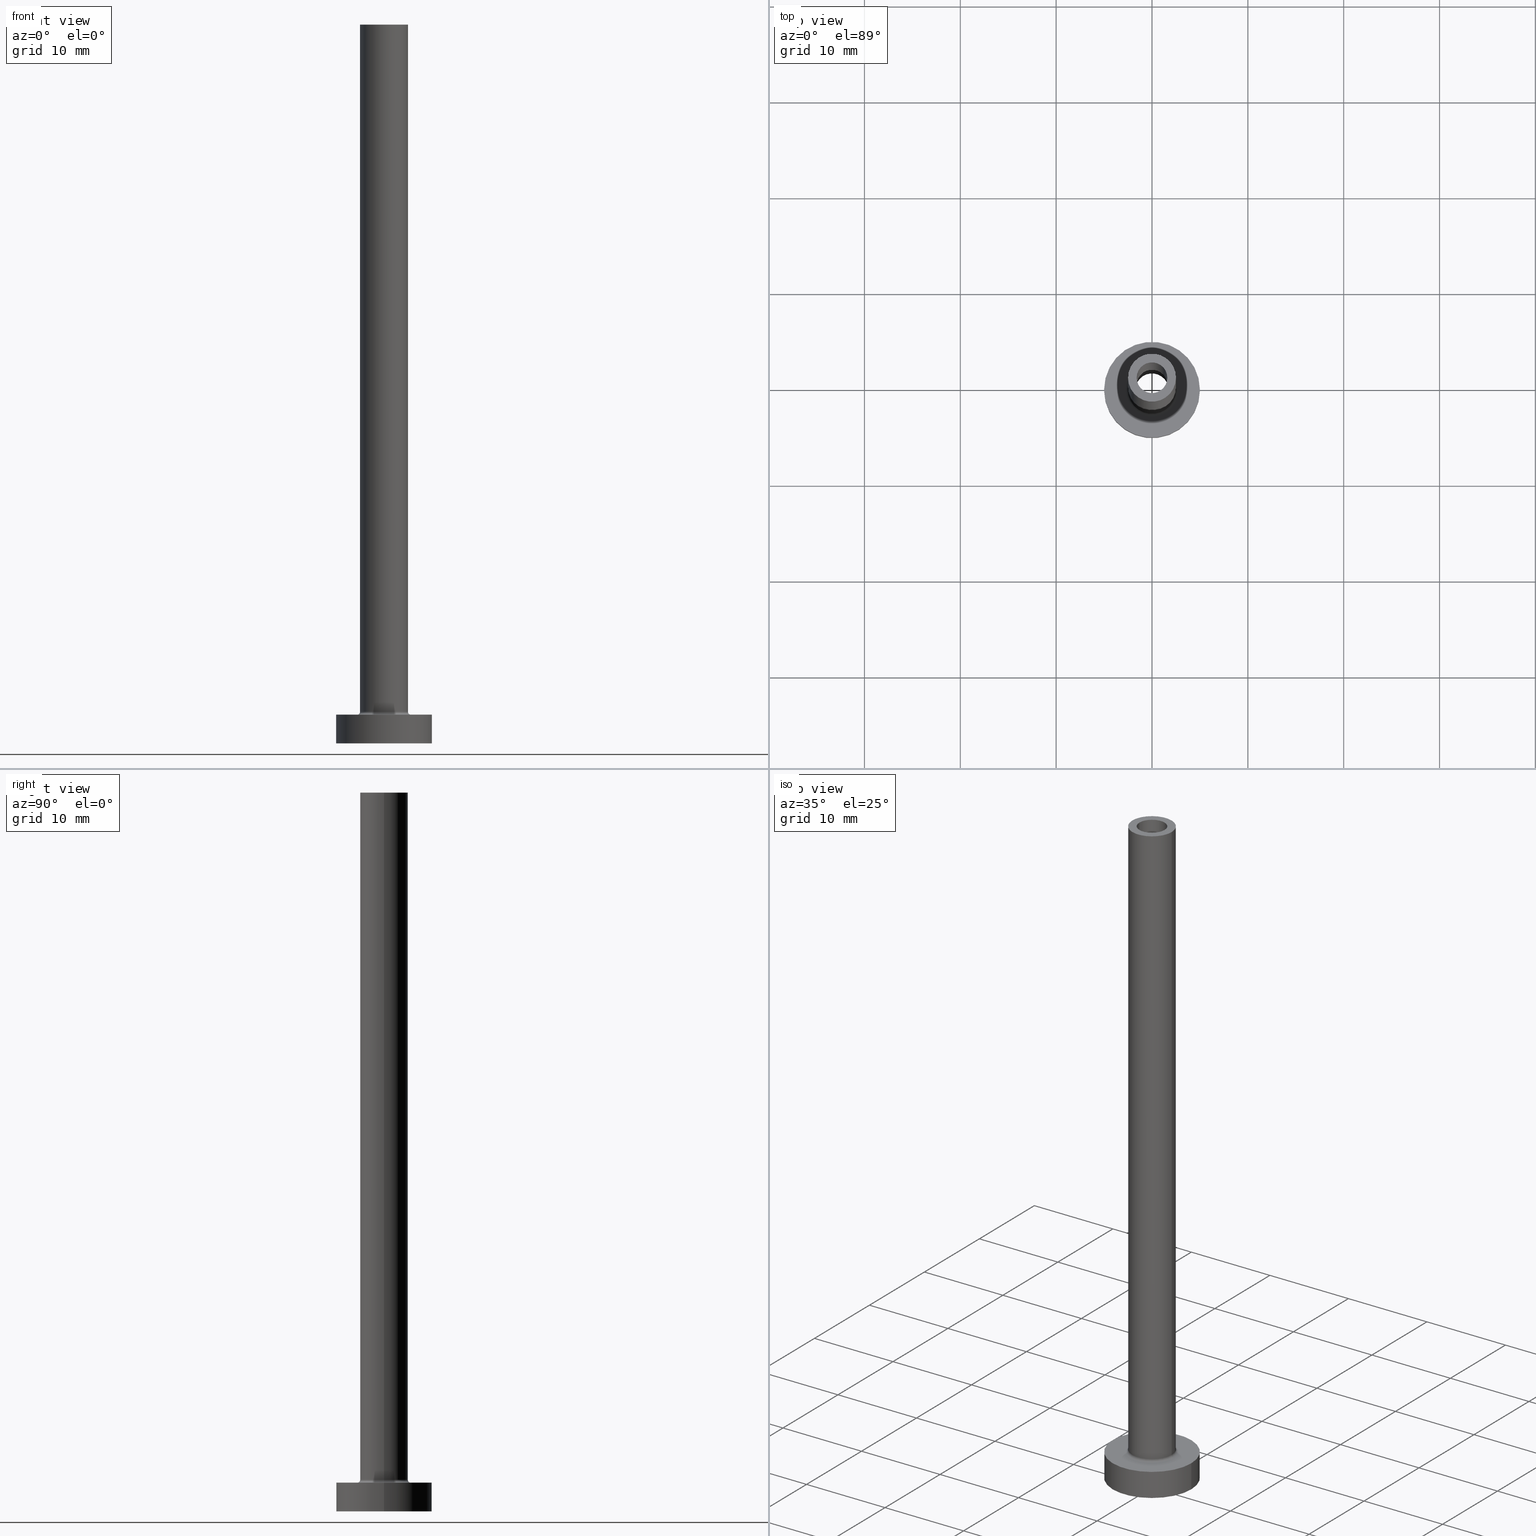
[diagram: canonical four-view strip — front | top / right | iso, engineering-drawing reading convention]
A machine part, canonical four-view strip (front | top / right | iso — engineering-drawing reading convention). The complete STEP part file that produces these views, byte-faithful:
ISO-10303-21;
HEADER;
FILE_DESCRIPTION (( 'STEP AP203' ),
    '1' );
FILE_NAME ('919c.STEP',
    '2023-02-13T12:03:36',
    ( '' ),
    ( '' ),
    'SwSTEP 2.0',
    'SolidWorks 2019',
    '' );
FILE_SCHEMA (( 'CONFIG_CONTROL_DESIGN' ));
ENDSEC;

DATA;
#1 = DIRECTION ( 'NONE',  ( 1.000000000000000000, 0.000000000000000000, 0.000000000000000000 ) ) ;
#2 = CIRCLE ( 'NONE', #239, 1.600000000000000089 ) ;
#3 = EDGE_CURVE ( 'NONE', #45, #334, #375, .T. ) ;
#4 = CC_DESIGN_APPROVAL ( #17, ( #327 ) ) ;
#5 = DIRECTION ( 'NONE',  ( 1.000000000000000000, 0.000000000000000000, 0.000000000000000000 ) ) ;
#6 = DIRECTION ( 'NONE',  ( 1.000000000000000000, 0.000000000000000000, 0.000000000000000000 ) ) ;
#7 = DIRECTION ( 'NONE',  ( 0.000000000000000000, 0.000000000000000000, 1.000000000000000000 ) ) ;
#8 = AXIS2_PLACEMENT_3D ( 'NONE', #140, #283, #71 ) ;
#9 = CC_DESIGN_APPROVAL ( #244, ( #142 ) ) ;
#10 = DIRECTION ( 'NONE',  ( 1.000000000000000000, 0.000000000000000000, 0.000000000000000000 ) ) ;
#11 = ORIENTED_EDGE ( 'NONE', *, *, #39, .F. ) ;
#12 = CARTESIAN_POINT ( 'NONE',  ( 0.000000000000000000, 0.000000000000000000, 3.299999999999997158 ) ) ;
#13 = DATE_TIME_ROLE ( 'creation_date' ) ;
#14 = DIRECTION ( 'NONE',  ( -0.000000000000000000, -0.000000000000000000, -1.000000000000000000 ) ) ;
#15 = PERSON_AND_ORGANIZATION ( #351, #225 ) ;
#16 = CIRCLE ( 'NONE', #399, 0.2999999999999999334 ) ;
#17 = APPROVAL ( #163, 'NEUR�EN�' ) ;
#18 = DIRECTION ( 'NONE',  ( -0.000000000000000000, -0.000000000000000000, -1.000000000000000000 ) ) ;
#19 = ORIENTED_EDGE ( 'NONE', *, *, #193, .F. ) ;
#20 = DIRECTION ( 'NONE',  ( 0.000000000000000000, 0.000000000000000000, 1.000000000000000000 ) ) ;
#21 = MANIFOLD_SOLID_BREP ( 'Odebrat vysunut�m4', #304 ) ;
#22 = CALENDAR_DATE ( 2023, 13, 2 ) ;
#23 = CARTESIAN_POINT ( 'NONE',  ( 0.000000000000000000, 0.000000000000000000, 75.00000000000001421 ) ) ;
#24 = EDGE_LOOP ( 'NONE', ( #147, #52 ) ) ;
#25 = AXIS2_PLACEMENT_3D ( 'NONE', #431, #215, #211 ) ;
#26 = ORIENTED_EDGE ( 'NONE', *, *, #95, .T. ) ;
#27 = PLANE ( 'NONE',  #290 ) ;
#28 = CARTESIAN_POINT ( 'NONE',  ( -2.500000000000000000, 0.000000000000000000, 75.00000000000001421 ) ) ;
#29 = DIRECTION ( 'NONE',  ( 0.000000000000000000, 0.000000000000000000, 1.000000000000000000 ) ) ;
#30 = CIRCLE ( 'NONE', #92, 1.600000000000000089 ) ;
#31 = EDGE_CURVE ( 'NONE', #350, #400, #168, .T. ) ;
#32 = APPROVAL_ROLE ( '' ) ;
#33 = FACE_OUTER_BOUND ( 'NONE', #456, .T. ) ;
#34 = CIRCLE ( 'NONE', #432, 1.600000000000000089 ) ;
#35 = LINE ( 'NONE', #138, #100 ) ;
#36 = EDGE_LOOP ( 'NONE', ( #86, #403, #187, #291 ) ) ;
#37 = DIRECTION ( 'NONE',  ( 0.000000000000000000, 0.000000000000000000, 1.000000000000000000 ) ) ;
#38 = CIRCLE ( 'NONE', #64, 1.750000000000000000 ) ;
#39 = EDGE_CURVE ( 'NONE', #83, #210, #34, .T. ) ;
#40 = CARTESIAN_POINT ( 'NONE',  ( 1.750000000000000000, 2.143131898507868297E-16, 0.000000000000000000 ) ) ;
#41 = ORIENTED_EDGE ( 'NONE', *, *, #272, .F. ) ;
#42 = CARTESIAN_POINT ( 'NONE',  ( 1.600000000000000089, 1.959434878635764737E-16, 75.00000000000001421 ) ) ;
#43 = EDGE_CURVE ( 'NONE', #350, #171, #104, .T. ) ;
#44 = DIRECTION ( 'NONE',  ( -0.000000000000000000, -0.000000000000000000, -1.000000000000000000 ) ) ;
#45 = VERTEX_POINT ( 'NONE', #398 ) ;
#46 = DIRECTION ( 'NONE',  ( 0.000000000000000000, 0.000000000000000000, -1.000000000000000000 ) ) ;
#47 = PERSON_AND_ORGANIZATION ( #351, #225 ) ;
#48 = APPROVAL ( #447, 'NEUR�EN�' ) ;
#49 = EDGE_CURVE ( 'NONE', #102, #153, #159, .T. ) ;
#50 = EDGE_CURVE ( 'NONE', #102, #323, #258, .T. ) ;
#51 = CARTESIAN_POINT ( 'NONE',  ( 0.000000000000000000, 0.000000000000000000, 75.00000000000001421 ) ) ;
#52 = ORIENTED_EDGE ( 'NONE', *, *, #407, .T. ) ;
#53 = CIRCLE ( 'NONE', #434, 2.799999999999999822 ) ;
#54 = EDGE_CURVE ( 'NONE', #323, #330, #282, .T. ) ;
#55 = CARTESIAN_POINT ( 'NONE',  ( 0.000000000000000000, 0.000000000000000000, 75.00000000000001421 ) ) ;
#56 = ORIENTED_EDGE ( 'NONE', *, *, #191, .F. ) ;
#57 = PERSON_AND_ORGANIZATION_ROLE ( 'design_supplier' ) ;
#58 = CIRCLE ( 'NONE', #174, 5.000000000000000000 ) ;
#59 = DIRECTION ( 'NONE',  ( 1.000000000000000000, 0.000000000000000000, 0.000000000000000000 ) ) ;
#60 = ORIENTED_EDGE ( 'NONE', *, *, #31, .T. ) ;
#61 = CYLINDRICAL_SURFACE ( 'NONE', #246, 1.750000000000000000 ) ;
#62 = FACE_OUTER_BOUND ( 'NONE', #377, .T. ) ;
#63 = VERTEX_POINT ( 'NONE', #333 ) ;
#64 = AXIS2_PLACEMENT_3D ( 'NONE', #390, #109, #214 ) ;
#65 = DIRECTION ( 'NONE',  ( -0.000000000000000000, -0.000000000000000000, -1.000000000000000000 ) ) ;
#66 = EDGE_CURVE ( 'NONE', #45, #135, #437, .T. ) ;
#67 = ORIENTED_EDGE ( 'NONE', *, *, #54, .T. ) ;
#68 = CYLINDRICAL_SURFACE ( 'NONE', #439, 2.500000000000000000 ) ;
#69 = ORIENTED_EDGE ( 'NONE', *, *, #293, .F. ) ;
#70 = ADVANCED_FACE ( 'NONE', ( #185 ), #395, .F. ) ;
#71 = DIRECTION ( 'NONE',  ( 1.000000000000000000, 0.000000000000000000, 0.000000000000000000 ) ) ;
#72 = DIRECTION ( 'NONE',  ( -1.000000000000000000, 0.000000000000000000, 0.000000000000000000 ) ) ;
#73 = LOCAL_TIME ( 13, 3, 36.00000000000000000, #229 ) ;
#74 = CARTESIAN_POINT ( 'NONE',  ( -2.500000000000000000, 0.000000000000000000, 3.299999999999997158 ) ) ;
#75 = CC_DESIGN_PERSON_AND_ORGANIZATION_ASSIGNMENT ( #236, #368, ( #186 ) ) ;
#76 = CARTESIAN_POINT ( 'NONE',  ( 0.000000000000000000, 0.000000000000000000, 75.00000000000001421 ) ) ;
#77 = DIRECTION ( 'NONE',  ( 0.000000000000000000, 0.000000000000000000, -1.000000000000000000 ) ) ;
#78 = APPROVAL_PERSON_ORGANIZATION ( #47, #17, #341 ) ;
#79 = APPROVAL_DATE_TIME ( #145, #17 ) ;
#80 = DIRECTION ( 'NONE',  ( 0.000000000000000000, 0.000000000000000000, 1.000000000000000000 ) ) ;
#81 = ORIENTED_EDGE ( 'NONE', *, *, #193, .T. ) ;
#82 = EDGE_LOOP ( 'NONE', ( #202, #81 ) ) ;
#83 = VERTEX_POINT ( 'NONE', #42 ) ;
#84 = AXIS2_PLACEMENT_3D ( 'NONE', #386, #37, #1 ) ;
#85 = CARTESIAN_POINT ( 'NONE',  ( 0.000000000000000000, 0.000000000000000000, 3.299999999999997158 ) ) ;
#86 = ORIENTED_EDGE ( 'NONE', *, *, #49, .T. ) ;
#87 = EDGE_CURVE ( 'NONE', #63, #135, #58, .T. ) ;
#88 = ADVANCED_FACE ( 'NONE', ( #440 ), #361, .T. ) ;
#89 = CARTESIAN_POINT ( 'NONE',  ( 2.500000000000000000, 3.061616997868383141E-16, 75.00000000000001421 ) ) ;
#90 = PERSON_AND_ORGANIZATION_ROLE ( 'classification_officer' ) ;
#91 = CARTESIAN_POINT ( 'NONE',  ( 0.000000000000000000, 0.000000000000000000, 3.000000000000000000 ) ) ;
#92 = AXIS2_PLACEMENT_3D ( 'NONE', #132, #450, #124 ) ;
#93 = CARTESIAN_POINT ( 'NONE',  ( -5.000000000000000000, 0.000000000000000000, 0.000000000000000000 ) ) ;
#94 = ORIENTED_EDGE ( 'NONE', *, *, #342, .F. ) ;
#95 = EDGE_CURVE ( 'NONE', #337, #171, #298, .T. ) ;
#96 = CC_DESIGN_PERSON_AND_ORGANIZATION_ASSIGNMENT ( #408, #374, ( #142 ) ) ;
#97 = DIRECTION ( 'NONE',  ( -1.000000000000000000, 0.000000000000000000, 0.000000000000000000 ) ) ;
#98 = ORIENTED_EDGE ( 'NONE', *, *, #170, .F. ) ;
#99 = DIRECTION ( 'NONE',  ( 0.000000000000000000, -1.000000000000000000, 0.000000000000000000 ) ) ;
#100 = VECTOR ( 'NONE', #176, 1000.000000000000000 ) ;
#101 = CARTESIAN_POINT ( 'NONE',  ( 0.000000000000000000, 0.000000000000000000, 3.000000000000000000 ) ) ;
#102 = VERTEX_POINT ( 'NONE', #369 ) ;
#103 = CALENDAR_DATE ( 2023, 13, 2 ) ;
#104 = CIRCLE ( 'NONE', #359, 2.500000000000000000 ) ;
#105 = CARTESIAN_POINT ( 'NONE',  ( -2.799999999999999822, 3.429011037612589276E-16, 2.999999999999998668 ) ) ;
#106 = CARTESIAN_POINT ( 'NONE',  ( 1.750000000000000000, 2.143131898507868297E-16, 34.94974746830584422 ) ) ;
#107 = CYLINDRICAL_SURFACE ( 'NONE', #328, 1.750000000000000000 ) ;
#108 =( GEOMETRIC_REPRESENTATION_CONTEXT ( 3 ) GLOBAL_UNCERTAINTY_ASSIGNED_CONTEXT ( ( #184 ) ) GLOBAL_UNIT_ASSIGNED_CONTEXT ( ( #155, #158, #233 ) ) REPRESENTATION_CONTEXT ( 'NONE', 'WORKASPACE' ) );
#109 = DIRECTION ( 'NONE',  ( -0.000000000000000000, -0.000000000000000000, -1.000000000000000000 ) ) ;
#110 = FACE_OUTER_BOUND ( 'NONE', #36, .T. ) ;
#111 = ADVANCED_FACE ( 'NONE', ( #360, #305 ), #27, .T. ) ;
#112 = AXIS2_PLACEMENT_3D ( 'NONE', #242, #245, #72 ) ;
#113 = DIRECTION ( 'NONE',  ( 0.000000000000000000, 0.000000000000000000, 1.000000000000000000 ) ) ;
#114 = DESIGN_CONTEXT ( 'detailed design', #149, 'design' ) ;
#115 = DIRECTION ( 'NONE',  ( 1.000000000000000000, 0.000000000000000000, 0.000000000000000000 ) ) ;
#116 = COORDINATED_UNIVERSAL_TIME_OFFSET ( 1, 0, .AHEAD. ) ;
#117 = APPROVAL_PERSON_ORGANIZATION ( #371, #48, #32 ) ;
#118 = DIRECTION ( 'NONE',  ( 0.000000000000000000, 0.000000000000000000, 1.000000000000000000 ) ) ;
#119 = AXIS2_PLACEMENT_3D ( 'NONE', #443, #224, #402 ) ;
#120 = PERSON_AND_ORGANIZATION ( #351, #225 ) ;
#121 = DIRECTION ( 'NONE',  ( -0.000000000000000000, -0.000000000000000000, -1.000000000000000000 ) ) ;
#122 = ORIENTED_EDGE ( 'NONE', *, *, #338, .T. ) ;
#123 = CALENDAR_DATE ( 2023, 13, 2 ) ;
#124 = DIRECTION ( 'NONE',  ( 1.000000000000000000, 0.000000000000000000, 0.000000000000000000 ) ) ;
#125 = ORIENTED_EDGE ( 'NONE', *, *, #151, .T. ) ;
#126 = CIRCLE ( 'NONE', #84, 2.500000000000000000 ) ;
#127 = DIRECTION ( 'NONE',  ( 0.000000000000000000, 0.000000000000000000, 1.000000000000000000 ) ) ;
#128 = ADVANCED_FACE ( 'NONE', ( #313 ), #141, .F. ) ;
#129 = ADVANCED_FACE ( 'NONE', ( #384, #413 ), #234, .T. ) ;
#130 = DIRECTION ( 'NONE',  ( 1.000000000000000000, 0.000000000000000000, 0.000000000000000000 ) ) ;
#131 = EDGE_LOOP ( 'NONE', ( #411, #418, #150, #263 ) ) ;
#132 = CARTESIAN_POINT ( 'NONE',  ( 0.000000000000000000, 0.000000000000000000, 30.00000000000001421 ) ) ;
#133 = AXIS2_PLACEMENT_3D ( 'NONE', #349, #209, #314 ) ;
#134 = CARTESIAN_POINT ( 'NONE',  ( 5.000000000000000000, 6.123233995736766282E-16, 3.000000000000000000 ) ) ;
#135 = VERTEX_POINT ( 'NONE', #93 ) ;
#136 = ADVANCED_FACE ( 'NONE', ( #62 ), #68, .T. ) ;
#137 = VECTOR ( 'NONE', #18, 1000.000000000000000 ) ;
#138 = CARTESIAN_POINT ( 'NONE',  ( -1.600000000000000089, 0.000000000000000000, 75.00000000000001421 ) ) ;
#139 = CYLINDRICAL_SURFACE ( 'NONE', #112, 1.600000000000000089 ) ;
#140 = CARTESIAN_POINT ( 'NONE',  ( 0.000000000000000000, 0.000000000000000000, 75.00000000000001421 ) ) ;
#141 = TOROIDAL_SURFACE ( 'NONE', #178, 2.799999999999999822, 0.2999999999999999889 ) ;
#142 = PRODUCT_DEFINITION_FORMATION_WITH_SPECIFIED_SOURCE ( 'LIBOVOLN�', '', #186, .NOT_KNOWN. ) ;
#143 = EDGE_LOOP ( 'NONE', ( #364, #406, #243, #266 ) ) ;
#144 = FACE_OUTER_BOUND ( 'NONE', #451, .T. ) ;
#145 = DATE_AND_TIME ( #378, #218 ) ;
#146 = ADVANCED_FACE ( 'NONE', ( #275 ), #376, .T. ) ;
#147 = ORIENTED_EDGE ( 'NONE', *, *, #195, .T. ) ;
#148 = PRODUCT_DEFINITION_SHAPE ( 'NONE', 'NONE',  #327 ) ;
#149 = APPLICATION_CONTEXT ( 'configuration controlled 3d designs of mechanical parts and assemblies' ) ;
#150 = ORIENTED_EDGE ( 'NONE', *, *, #87, .T. ) ;
#151 = EDGE_CURVE ( 'NONE', #380, #438, #30, .T. ) ;
#152 = CC_DESIGN_PERSON_AND_ORGANIZATION_ASSIGNMENT ( #120, #190, ( #327 ) ) ;
#153 = VERTEX_POINT ( 'NONE', #277 ) ;
#154 = ORIENTED_EDGE ( 'NONE', *, *, #151, .F. ) ;
#155 =( LENGTH_UNIT ( ) NAMED_UNIT ( * ) SI_UNIT ( .MILLI., .METRE. ) );
#156 = DIRECTION ( 'NONE',  ( -1.000000000000000000, 0.000000000000000000, 0.000000000000000000 ) ) ;
#157 = CIRCLE ( 'NONE', #353, 2.799999999999999822 ) ;
#158 =( NAMED_UNIT ( * ) PLANE_ANGLE_UNIT ( ) SI_UNIT ( $, .RADIAN. ) );
#159 = CIRCLE ( 'NONE', #423, 1.750000000000000000 ) ;
#160 = ORIENTED_EDGE ( 'NONE', *, *, #43, .F. ) ;
#161 = DIRECTION ( 'NONE',  ( -1.000000000000000000, 0.000000000000000000, 0.000000000000000000 ) ) ;
#162 = DIRECTION ( 'NONE',  ( 1.000000000000000000, 0.000000000000000000, -0.000000000000000000 ) ) ;
#163 = APPROVAL_STATUS ( 'not_yet_approved' ) ;
#164 = DIRECTION ( 'NONE',  ( 0.000000000000000000, 0.000000000000000000, 1.000000000000000000 ) ) ;
#165 = AXIS2_PLACEMENT_3D ( 'NONE', #270, #227, #6 ) ;
#166 = CARTESIAN_POINT ( 'NONE',  ( 0.000000000000000000, 0.000000000000000000, 3.000000000000000000 ) ) ;
#167 = DATE_AND_TIME ( #103, #430 ) ;
#168 = CIRCLE ( 'NONE', #119, 0.2999999999999999334 ) ;
#169 = DIRECTION ( 'NONE',  ( -1.000000000000000000, 0.000000000000000000, 0.000000000000000000 ) ) ;
#170 = EDGE_CURVE ( 'NONE', #135, #63, #194, .T. ) ;
#171 = VERTEX_POINT ( 'NONE', #452 ) ;
#172 = CIRCLE ( 'NONE', #392, 2.500000000000000000 ) ;
#173 = LINE ( 'NONE', #355, #251 ) ;
#174 = AXIS2_PLACEMENT_3D ( 'NONE', #295, #221, #115 ) ;
#175 = DIRECTION ( 'NONE',  ( -0.000000000000000000, -0.000000000000000000, -1.000000000000000000 ) ) ;
#176 = DIRECTION ( 'NONE',  ( 0.000000000000000000, 0.000000000000000000, -1.000000000000000000 ) ) ;
#177 = CARTESIAN_POINT ( 'NONE',  ( 0.000000000000000000, 0.000000000000000000, 3.000000000000000000 ) ) ;
#178 = AXIS2_PLACEMENT_3D ( 'NONE', #265, #372, #449 ) ;
#179 = DIRECTION ( 'NONE',  ( 0.000000000000000000, 0.000000000000000000, 1.000000000000000000 ) ) ;
#180 = VERTEX_POINT ( 'NONE', #28 ) ;
#181 = ORIENTED_EDGE ( 'NONE', *, *, #191, .T. ) ;
#182 = ORIENTED_EDGE ( 'NONE', *, *, #223, .F. ) ;
#183 = AXIS2_PLACEMENT_3D ( 'NONE', #352, #29, #356 ) ;
#184 = UNCERTAINTY_MEASURE_WITH_UNIT (LENGTH_MEASURE( 1.000000000000000082E-05 ), #155, 'distance_accuracy_value', 'NONE');
#185 = FACE_OUTER_BOUND ( 'NONE', #362, .T. ) ;
#186 = PRODUCT ( '919c', '919c', '', ( #264 ) ) ;
#187 = ORIENTED_EDGE ( 'NONE', *, *, #272, .T. ) ;
#188 = APPLICATION_CONTEXT ( 'configuration controlled 3d designs of mechanical parts and assemblies' ) ;
#189 = CARTESIAN_POINT ( 'NONE',  ( 0.000000000000000000, 0.000000000000000000, 3.000000000000000000 ) ) ;
#190 = PERSON_AND_ORGANIZATION_ROLE ( 'creator' ) ;
#191 = EDGE_CURVE ( 'NONE', #171, #367, #16, .T. ) ;
#192 = DIRECTION ( 'NONE',  ( 0.000000000000000000, 0.000000000000000000, 1.000000000000000000 ) ) ;
#193 = EDGE_CURVE ( 'NONE', #400, #367, #157, .T. ) ;
#194 = CIRCLE ( 'NONE', #133, 5.000000000000000000 ) ;
#195 = EDGE_CURVE ( 'NONE', #180, #337, #172, .T. ) ;
#196 = SECURITY_CLASSIFICATION_LEVEL ( 'unclassified' ) ;
#197 = DIRECTION ( 'NONE',  ( 0.000000000000000000, 0.000000000000000000, 1.000000000000000000 ) ) ;
#198 = PERSON_AND_ORGANIZATION ( #351, #225 ) ;
#199 = CARTESIAN_POINT ( 'NONE',  ( 0.000000000000000000, 0.000000000000000000, 75.00000000000001421 ) ) ;
#200 = EDGE_LOOP ( 'NONE', ( #98, #370 ) ) ;
#201 = FACE_OUTER_BOUND ( 'NONE', #131, .T. ) ;
#202 = ORIENTED_EDGE ( 'NONE', *, *, #342, .T. ) ;
#203 = CC_DESIGN_PERSON_AND_ORGANIZATION_ASSIGNMENT ( #198, #90, ( #300 ) ) ;
#204 = COORDINATED_UNIVERSAL_TIME_OFFSET ( 1, 0, .AHEAD. ) ;
#205 = LOCAL_TIME ( 13, 3, 36.00000000000000000, #289 ) ;
#206 = DIRECTION ( 'NONE',  ( 1.000000000000000000, 0.000000000000000000, -0.000000000000000000 ) ) ;
#207 = ORIENTED_EDGE ( 'NONE', *, *, #66, .T. ) ;
#208 = SHAPE_DEFINITION_REPRESENTATION ( #148, #315 ) ;
#209 = DIRECTION ( 'NONE',  ( 0.000000000000000000, 0.000000000000000000, 1.000000000000000000 ) ) ;
#210 = VERTEX_POINT ( 'NONE', #273 ) ;
#211 = DIRECTION ( 'NONE',  ( -1.000000000000000000, 0.000000000000000000, 0.000000000000000000 ) ) ;
#212 = ADVANCED_FACE ( 'NONE', ( #267, #410 ), #231, .F. ) ;
#213 = LINE ( 'NONE', #391, #299 ) ;
#214 = DIRECTION ( 'NONE',  ( 1.000000000000000000, 0.000000000000000000, 0.000000000000000000 ) ) ;
#215 = DIRECTION ( 'NONE',  ( 0.000000000000000000, 0.000000000000000000, -1.000000000000000000 ) ) ;
#216 = CARTESIAN_POINT ( 'NONE',  ( 2.799999999999999822, 0.000000000000000000, 2.999999999999998668 ) ) ;
#217 = AXIS2_PLACEMENT_3D ( 'NONE', #177, #324, #5 ) ;
#218 = LOCAL_TIME ( 13, 3, 36.00000000000000000, #307 ) ;
#219 = VECTOR ( 'NONE', #46, 1000.000000000000000 ) ;
#220 = APPROVAL_STATUS ( 'not_yet_approved' ) ;
#221 = DIRECTION ( 'NONE',  ( 0.000000000000000000, 0.000000000000000000, 1.000000000000000000 ) ) ;
#222 = ORIENTED_EDGE ( 'NONE', *, *, #49, .F. ) ;
#223 = EDGE_CURVE ( 'NONE', #153, #102, #388, .T. ) ;
#224 = DIRECTION ( 'NONE',  ( 1.224646799147353207E-16, 1.000000000000000000, -0.000000000000000000 ) ) ;
#225 = ORGANIZATION ( 'NEUR�EN�', 'NEUR�EN�', '' ) ;
#226 = DIRECTION ( 'NONE',  ( 1.000000000000000000, 0.000000000000000000, 0.000000000000000000 ) ) ;
#227 = DIRECTION ( 'NONE',  ( 0.000000000000000000, 0.000000000000000000, 1.000000000000000000 ) ) ;
#228 = DIRECTION ( 'NONE',  ( -0.000000000000000000, -0.000000000000000000, -1.000000000000000000 ) ) ;
#229 = COORDINATED_UNIVERSAL_TIME_OFFSET ( 1, 0, .AHEAD. ) ;
#230 = EDGE_CURVE ( 'NONE', #438, #380, #2, .T. ) ;
#231 = PLANE ( 'NONE',  #448 ) ;
#232 = EDGE_LOOP ( 'NONE', ( #414, #317 ) ) ;
#233 =( NAMED_UNIT ( * ) SI_UNIT ( $, .STERADIAN. ) SOLID_ANGLE_UNIT ( ) );
#234 = PLANE ( 'NONE',  #455 ) ;
#235 = ORIENTED_EDGE ( 'NONE', *, *, #256, .T. ) ;
#236 = PERSON_AND_ORGANIZATION ( #351, #225 ) ;
#237 = DIRECTION ( 'NONE',  ( 0.000000000000000000, 0.000000000000000000, 1.000000000000000000 ) ) ;
#238 = DIRECTION ( 'NONE',  ( -0.000000000000000000, -0.000000000000000000, -1.000000000000000000 ) ) ;
#239 = AXIS2_PLACEMENT_3D ( 'NONE', #311, #237, #379 ) ;
#240 = DIRECTION ( 'NONE',  ( 1.000000000000000000, 0.000000000000000000, 0.000000000000000000 ) ) ;
#241 = EDGE_LOOP ( 'NONE', ( #235, #122, #154, #385 ) ) ;
#242 = CARTESIAN_POINT ( 'NONE',  ( 0.000000000000000000, 0.000000000000000000, 75.00000000000001421 ) ) ;
#243 = ORIENTED_EDGE ( 'NONE', *, *, #288, .T. ) ;
#244 = APPROVAL ( #220, 'NEUR�EN�' ) ;
#245 = DIRECTION ( 'NONE',  ( 0.000000000000000000, 0.000000000000000000, -1.000000000000000000 ) ) ;
#246 = AXIS2_PLACEMENT_3D ( 'NONE', #412, #261, #161 ) ;
#247 = DIRECTION ( 'NONE',  ( 0.000000000000000000, 0.000000000000000000, -1.000000000000000000 ) ) ;
#248 = ADVANCED_FACE ( 'NONE', ( #201 ), #344, .T. ) ;
#249 = FACE_BOUND ( 'NONE', #348, .T. ) ;
#250 = CARTESIAN_POINT ( 'NONE',  ( 0.000000000000000000, 0.000000000000000000, 34.94974746830584422 ) ) ;
#251 = VECTOR ( 'NONE', #77, 1000.000000000000000 ) ;
#252 = DATE_AND_TIME ( #445, #205 ) ;
#253 = AXIS2_PLACEMENT_3D ( 'NONE', #343, #164, #130 ) ;
#254 = CC_DESIGN_SECURITY_CLASSIFICATION ( #300, ( #142 ) ) ;
#255 = DIRECTION ( 'NONE',  ( 1.000000000000000000, 0.000000000000000000, 0.000000000000000000 ) ) ;
#256 = EDGE_CURVE ( 'NONE', #210, #83, #429, .T. ) ;
#257 = CARTESIAN_POINT ( 'NONE',  ( -1.750000000000000000, 0.000000000000000000, 34.94974746830584422 ) ) ;
#258 = LINE ( 'NONE', #257, #219 ) ;
#259 = ORIENTED_EDGE ( 'NONE', *, *, #3, .F. ) ;
#260 = AXIS2_PLACEMENT_3D ( 'NONE', #166, #238, #416 ) ;
#261 = DIRECTION ( 'NONE',  ( 0.000000000000000000, 0.000000000000000000, -1.000000000000000000 ) ) ;
#262 = EDGE_LOOP ( 'NONE', ( #276, #11 ) ) ;
#263 = ORIENTED_EDGE ( 'NONE', *, *, #66, .F. ) ;
#264 = MECHANICAL_CONTEXT ( 'NONE', #188, 'mechanical' ) ;
#265 = CARTESIAN_POINT ( 'NONE',  ( 0.000000000000000000, 0.000000000000000000, 3.299999999999997158 ) ) ;
#266 = ORIENTED_EDGE ( 'NONE', *, *, #43, .T. ) ;
#267 = FACE_BOUND ( 'NONE', #444, .T. ) ;
#268 = CIRCLE ( 'NONE', #8, 2.500000000000000000 ) ;
#269 = ORIENTED_EDGE ( 'NONE', *, *, #381, .T. ) ;
#270 = CARTESIAN_POINT ( 'NONE',  ( 0.000000000000000000, 0.000000000000000000, 0.000000000000000000 ) ) ;
#271 = CC_DESIGN_DATE_AND_TIME_ASSIGNMENT ( #252, #13, ( #327 ) ) ;
#272 = EDGE_CURVE ( 'NONE', #330, #323, #38, .T. ) ;
#273 = CARTESIAN_POINT ( 'NONE',  ( -1.600000000000000089, 0.000000000000000000, 75.00000000000001421 ) ) ;
#274 = ORIENTED_EDGE ( 'NONE', *, *, #39, .T. ) ;
#275 = FACE_OUTER_BOUND ( 'NONE', #143, .T. ) ;
#276 = ORIENTED_EDGE ( 'NONE', *, *, #256, .F. ) ;
#277 = CARTESIAN_POINT ( 'NONE',  ( 1.750000000000000000, 2.143131898507868297E-16, 30.00000000000001421 ) ) ;
#278 = ORIENTED_EDGE ( 'NONE', *, *, #230, .F. ) ;
#279 = AXIS2_PLACEMENT_3D ( 'NONE', #76, #179, #284 ) ;
#280 = DIRECTION ( 'NONE',  ( -0.000000000000000000, -0.000000000000000000, -1.000000000000000000 ) ) ;
#281 = ORIENTED_EDGE ( 'NONE', *, *, #381, .F. ) ;
#282 = CIRCLE ( 'NONE', #339, 1.750000000000000000 ) ;
#283 = DIRECTION ( 'NONE',  ( 0.000000000000000000, 0.000000000000000000, 1.000000000000000000 ) ) ;
#284 = DIRECTION ( 'NONE',  ( 1.000000000000000000, 0.000000000000000000, 0.000000000000000000 ) ) ;
#285 = AXIS2_PLACEMENT_3D ( 'NONE', #189, #14, #156 ) ;
#286 = FACE_OUTER_BOUND ( 'NONE', #401, .T. ) ;
#287 = PLANE ( 'NONE',  #183 ) ;
#288 = EDGE_CURVE ( 'NONE', #180, #350, #213, .T. ) ;
#289 = COORDINATED_UNIVERSAL_TIME_OFFSET ( 1, 0, .AHEAD. ) ;
#290 = AXIS2_PLACEMENT_3D ( 'NONE', #55, #405, #308 ) ;
#291 = ORIENTED_EDGE ( 'NONE', *, *, #50, .F. ) ;
#292 = ORIENTED_EDGE ( 'NONE', *, *, #230, .T. ) ;
#293 = EDGE_CURVE ( 'NONE', #334, #63, #461, .T. ) ;
#294 = ORIENTED_EDGE ( 'NONE', *, *, #50, .T. ) ;
#295 = CARTESIAN_POINT ( 'NONE',  ( 0.000000000000000000, 0.000000000000000000, 0.000000000000000000 ) ) ;
#296 = ORIENTED_EDGE ( 'NONE', *, *, #365, .T. ) ;
#297 = DATE_AND_TIME ( #22, #73 ) ;
#298 = LINE ( 'NONE', #89, #383 ) ;
#299 = VECTOR ( 'NONE', #175, 1000.000000000000000 ) ;
#300 = SECURITY_CLASSIFICATION ( '', '', #196 ) ;
#301 = EDGE_LOOP ( 'NONE', ( #69, #259, #207, #397 ) ) ;
#302 = EDGE_CURVE ( 'NONE', #153, #330, #454, .T. ) ;
#303 = APPLICATION_PROTOCOL_DEFINITION ( 'international standard', 'config_control_design', 1994, #149 ) ;
#304 = CLOSED_SHELL ( 'NONE', ( #329, #453, #128, #136, #248, #88, #129, #212, #146, #111, #70, #347, #426, #424 ) ) ;
#305 = FACE_OUTER_BOUND ( 'NONE', #24, .T. ) ;
#306 = ORIENTED_EDGE ( 'NONE', *, *, #288, .F. ) ;
#307 = COORDINATED_UNIVERSAL_TIME_OFFSET ( 1, 0, .AHEAD. ) ;
#308 = DIRECTION ( 'NONE',  ( 1.000000000000000000, 0.000000000000000000, -0.000000000000000000 ) ) ;
#309 = ORIENTED_EDGE ( 'NONE', *, *, #31, .F. ) ;
#310 = DATE_TIME_ROLE ( 'classification_date' ) ;
#311 = CARTESIAN_POINT ( 'NONE',  ( 0.000000000000000000, 0.000000000000000000, 30.00000000000001421 ) ) ;
#312 = APPROVAL_PERSON_ORGANIZATION ( #393, #244, #442 ) ;
#313 = FACE_OUTER_BOUND ( 'NONE', #331, .T. ) ;
#314 = DIRECTION ( 'NONE',  ( 1.000000000000000000, 0.000000000000000000, 0.000000000000000000 ) ) ;
#315 = ADVANCED_BREP_SHAPE_REPRESENTATION ( '919c', ( #21, #165 ), #108 ) ;
#316 = DIRECTION ( 'NONE',  ( 0.000000000000000000, 0.000000000000000000, -1.000000000000000000 ) ) ;
#317 = ORIENTED_EDGE ( 'NONE', *, *, #428, .T. ) ;
#318 = VECTOR ( 'NONE', #422, 1000.000000000000000 ) ;
#319 = CARTESIAN_POINT ( 'NONE',  ( -1.600000000000000089, 0.000000000000000000, 30.00000000000001421 ) ) ;
#320 = AXIS2_PLACEMENT_3D ( 'NONE', #435, #192, #10 ) ;
#321 = CARTESIAN_POINT ( 'NONE',  ( 5.000000000000000000, 6.123233995736766282E-16, 3.000000000000000000 ) ) ;
#322 = CARTESIAN_POINT ( 'NONE',  ( 2.500000000000000000, 3.061616997868383141E-16, 75.00000000000001421 ) ) ;
#323 = VERTEX_POINT ( 'NONE', #358 ) ;
#324 = DIRECTION ( 'NONE',  ( 0.000000000000000000, 0.000000000000000000, 1.000000000000000000 ) ) ;
#325 = APPLICATION_PROTOCOL_DEFINITION ( 'international standard', 'config_control_design', 1994, #188 ) ;
#326 = DIRECTION ( 'NONE',  ( 1.000000000000000000, 0.000000000000000000, 0.000000000000000000 ) ) ;
#327 = PRODUCT_DEFINITION ( 'NEZN�M�', '', #142, #114 ) ;
#328 = AXIS2_PLACEMENT_3D ( 'NONE', #250, #247, #458 ) ;
#329 = ADVANCED_FACE ( 'NONE', ( #389 ), #139, .F. ) ;
#330 = VERTEX_POINT ( 'NONE', #40 ) ;
#331 = EDGE_LOOP ( 'NONE', ( #160, #60, #94, #56 ) ) ;
#332 = CC_DESIGN_DATE_AND_TIME_ASSIGNMENT ( #297, #310, ( #300 ) ) ;
#333 = CARTESIAN_POINT ( 'NONE',  ( 5.000000000000000000, 6.123233995736766282E-16, 0.000000000000000000 ) ) ;
#334 = VERTEX_POINT ( 'NONE', #134 ) ;
#335 = DATE_AND_TIME ( #123, #457 ) ;
#336 = DIRECTION ( 'NONE',  ( 1.000000000000000000, 0.000000000000000000, 0.000000000000000000 ) ) ;
#337 = VERTEX_POINT ( 'NONE', #322 ) ;
#338 = EDGE_CURVE ( 'NONE', #83, #438, #173, .T. ) ;
#339 = AXIS2_PLACEMENT_3D ( 'NONE', #363, #44, #326 ) ;
#340 = CARTESIAN_POINT ( 'NONE',  ( 0.000000000000000000, 0.000000000000000000, 0.000000000000000000 ) ) ;
#341 = APPROVAL_ROLE ( '' ) ;
#342 = EDGE_CURVE ( 'NONE', #367, #400, #53, .T. ) ;
#343 = CARTESIAN_POINT ( 'NONE',  ( 0.000000000000000000, 0.000000000000000000, 30.00000000000001421 ) ) ;
#344 = CYLINDRICAL_SURFACE ( 'NONE', #260, 5.000000000000000000 ) ;
#345 = CC_DESIGN_APPROVAL ( #48, ( #300 ) ) ;
#346 = CARTESIAN_POINT ( 'NONE',  ( 0.000000000000000000, 0.000000000000000000, 75.00000000000001421 ) ) ;
#347 = ADVANCED_FACE ( 'NONE', ( #33 ), #107, .F. ) ;
#348 = EDGE_LOOP ( 'NONE', ( #125, #292 ) ) ;
#349 = CARTESIAN_POINT ( 'NONE',  ( 0.000000000000000000, 0.000000000000000000, 0.000000000000000000 ) ) ;
#350 = VERTEX_POINT ( 'NONE', #74 ) ;
#351 = PERSON ( 'NEUR�EN�', 'NEUR�EN�', 'NEUR�EN�', ('NEUR�EN�'), ('NEUR�EN�'), ('NEUR�EN�') ) ;
#352 = CARTESIAN_POINT ( 'NONE',  ( 0.000000000000000000, 0.000000000000000000, 30.00000000000001421 ) ) ;
#353 = AXIS2_PLACEMENT_3D ( 'NONE', #101, #121, #59 ) ;
#354 = CARTESIAN_POINT ( 'NONE',  ( 0.000000000000000000, 0.000000000000000000, 3.000000000000000000 ) ) ;
#355 = CARTESIAN_POINT ( 'NONE',  ( 1.600000000000000089, 1.959434878635764737E-16, 75.00000000000001421 ) ) ;
#356 = DIRECTION ( 'NONE',  ( 1.000000000000000000, 0.000000000000000000, -0.000000000000000000 ) ) ;
#357 = CIRCLE ( 'NONE', #217, 5.000000000000000000 ) ;
#358 = CARTESIAN_POINT ( 'NONE',  ( -1.750000000000000000, 0.000000000000000000, 0.000000000000000000 ) ) ;
#359 = AXIS2_PLACEMENT_3D ( 'NONE', #85, #7, #226 ) ;
#360 = FACE_BOUND ( 'NONE', #262, .T. ) ;
#361 = CYLINDRICAL_SURFACE ( 'NONE', #285, 5.000000000000000000 ) ;
#362 = EDGE_LOOP ( 'NONE', ( #309, #281, #181, #19 ) ) ;
#363 = CARTESIAN_POINT ( 'NONE',  ( 0.000000000000000000, 0.000000000000000000, 0.000000000000000000 ) ) ;
#364 = ORIENTED_EDGE ( 'NONE', *, *, #95, .F. ) ;
#365 = EDGE_CURVE ( 'NONE', #210, #380, #35, .T. ) ;
#366 = CARTESIAN_POINT ( 'NONE',  ( 0.000000000000000000, 0.000000000000000000, 30.00000000000001421 ) ) ;
#367 = VERTEX_POINT ( 'NONE', #216 ) ;
#368 = PERSON_AND_ORGANIZATION_ROLE ( 'design_owner' ) ;
#369 = CARTESIAN_POINT ( 'NONE',  ( -1.750000000000000000, 0.000000000000000000, 30.00000000000001421 ) ) ;
#370 = ORIENTED_EDGE ( 'NONE', *, *, #87, .F. ) ;
#371 = PERSON_AND_ORGANIZATION ( #351, #225 ) ;
#372 = DIRECTION ( 'NONE',  ( 0.000000000000000000, 0.000000000000000000, 1.000000000000000000 ) ) ;
#373 = ORIENTED_EDGE ( 'NONE', *, *, #407, .F. ) ;
#374 = PERSON_AND_ORGANIZATION_ROLE ( 'creator' ) ;
#375 = CIRCLE ( 'NONE', #320, 5.000000000000000000 ) ;
#376 = CYLINDRICAL_SURFACE ( 'NONE', #420, 2.500000000000000000 ) ;
#377 = EDGE_LOOP ( 'NONE', ( #373, #26, #269, #306 ) ) ;
#378 = CALENDAR_DATE ( 2023, 13, 2 ) ;
#379 = DIRECTION ( 'NONE',  ( 1.000000000000000000, 0.000000000000000000, 0.000000000000000000 ) ) ;
#380 = VERTEX_POINT ( 'NONE', #319 ) ;
#381 = EDGE_CURVE ( 'NONE', #171, #350, #126, .T. ) ;
#382 = DIRECTION ( 'NONE',  ( -0.000000000000000000, -0.000000000000000000, -1.000000000000000000 ) ) ;
#383 = VECTOR ( 'NONE', #228, 1000.000000000000000 ) ;
#384 = FACE_BOUND ( 'NONE', #82, .T. ) ;
#385 = ORIENTED_EDGE ( 'NONE', *, *, #365, .F. ) ;
#386 = CARTESIAN_POINT ( 'NONE',  ( 0.000000000000000000, 0.000000000000000000, 3.299999999999997158 ) ) ;
#387 = DIRECTION ( 'NONE',  ( 0.000000000000000000, 0.000000000000000000, -1.000000000000000000 ) ) ;
#388 = CIRCLE ( 'NONE', #253, 1.750000000000000000 ) ;
#389 = FACE_OUTER_BOUND ( 'NONE', #241, .T. ) ;
#390 = CARTESIAN_POINT ( 'NONE',  ( 0.000000000000000000, 0.000000000000000000, 0.000000000000000000 ) ) ;
#391 = CARTESIAN_POINT ( 'NONE',  ( -2.500000000000000000, 0.000000000000000000, 75.00000000000001421 ) ) ;
#392 = AXIS2_PLACEMENT_3D ( 'NONE', #199, #197, #240 ) ;
#393 = PERSON_AND_ORGANIZATION ( #351, #225 ) ;
#394 = DIRECTION ( 'NONE',  ( 1.000000000000000000, 0.000000000000000000, 0.000000000000000000 ) ) ;
#395 = TOROIDAL_SURFACE ( 'NONE', #459, 2.799999999999999822, 0.2999999999999999889 ) ;
#396 = CARTESIAN_POINT ( 'NONE',  ( -5.000000000000000000, 0.000000000000000000, 3.000000000000000000 ) ) ;
#397 = ORIENTED_EDGE ( 'NONE', *, *, #170, .T. ) ;
#398 = CARTESIAN_POINT ( 'NONE',  ( -5.000000000000000000, 0.000000000000000000, 3.000000000000000000 ) ) ;
#399 = AXIS2_PLACEMENT_3D ( 'NONE', #419, #99, #316 ) ;
#400 = VERTEX_POINT ( 'NONE', #105 ) ;
#401 = EDGE_LOOP ( 'NONE', ( #421, #274, #296, #278 ) ) ;
#402 = DIRECTION ( 'NONE',  ( -1.000000000000000000, 1.224646799147353207E-16, 0.000000000000000000 ) ) ;
#403 = ORIENTED_EDGE ( 'NONE', *, *, #302, .T. ) ;
#404 = APPROVAL_DATE_TIME ( #335, #244 ) ;
#405 = DIRECTION ( 'NONE',  ( 0.000000000000000000, 0.000000000000000000, 1.000000000000000000 ) ) ;
#406 = ORIENTED_EDGE ( 'NONE', *, *, #195, .F. ) ;
#407 = EDGE_CURVE ( 'NONE', #337, #180, #268, .T. ) ;
#408 = PERSON_AND_ORGANIZATION ( #351, #225 ) ;
#409 = VECTOR ( 'NONE', #387, 1000.000000000000000 ) ;
#410 = FACE_OUTER_BOUND ( 'NONE', #200, .T. ) ;
#411 = ORIENTED_EDGE ( 'NONE', *, *, #428, .F. ) ;
#412 = CARTESIAN_POINT ( 'NONE',  ( 0.000000000000000000, 0.000000000000000000, 34.94974746830584422 ) ) ;
#413 = FACE_OUTER_BOUND ( 'NONE', #232, .T. ) ;
#414 = ORIENTED_EDGE ( 'NONE', *, *, #3, .T. ) ;
#415 = APPROVAL_DATE_TIME ( #167, #48 ) ;
#416 = DIRECTION ( 'NONE',  ( -1.000000000000000000, 0.000000000000000000, 0.000000000000000000 ) ) ;
#417 = CC_DESIGN_PERSON_AND_ORGANIZATION_ASSIGNMENT ( #15, #57, ( #142 ) ) ;
#418 = ORIENTED_EDGE ( 'NONE', *, *, #293, .T. ) ;
#419 = CARTESIAN_POINT ( 'NONE',  ( 2.799999999999999822, 0.000000000000000000, 3.299999999999997158 ) ) ;
#420 = AXIS2_PLACEMENT_3D ( 'NONE', #23, #65, #169 ) ;
#421 = ORIENTED_EDGE ( 'NONE', *, *, #338, .F. ) ;
#422 = DIRECTION ( 'NONE',  ( -0.000000000000000000, -0.000000000000000000, -1.000000000000000000 ) ) ;
#423 = AXIS2_PLACEMENT_3D ( 'NONE', #366, #113, #255 ) ;
#424 = ADVANCED_FACE ( 'NONE', ( #286 ), #425, .F. ) ;
#425 = CYLINDRICAL_SURFACE ( 'NONE', #25, 1.600000000000000089 ) ;
#426 = ADVANCED_FACE ( 'NONE', ( #249, #144 ), #287, .F. ) ;
#427 = DIRECTION ( 'NONE',  ( 1.000000000000000000, 0.000000000000000000, 0.000000000000000000 ) ) ;
#428 = EDGE_CURVE ( 'NONE', #334, #45, #357, .T. ) ;
#429 = CIRCLE ( 'NONE', #279, 1.600000000000000089 ) ;
#430 = LOCAL_TIME ( 13, 3, 36.00000000000000000, #204 ) ;
#431 = CARTESIAN_POINT ( 'NONE',  ( 0.000000000000000000, 0.000000000000000000, 75.00000000000001421 ) ) ;
#432 = AXIS2_PLACEMENT_3D ( 'NONE', #51, #118, #336 ) ;
#433 = CARTESIAN_POINT ( 'NONE',  ( 1.600000000000000089, 1.959434878635764737E-16, 30.00000000000001421 ) ) ;
#434 = AXIS2_PLACEMENT_3D ( 'NONE', #354, #280, #427 ) ;
#435 = CARTESIAN_POINT ( 'NONE',  ( 0.000000000000000000, 0.000000000000000000, 3.000000000000000000 ) ) ;
#436 = ORIENTED_EDGE ( 'NONE', *, *, #223, .T. ) ;
#437 = LINE ( 'NONE', #396, #137 ) ;
#438 = VERTEX_POINT ( 'NONE', #433 ) ;
#439 = AXIS2_PLACEMENT_3D ( 'NONE', #346, #382, #97 ) ;
#440 = FACE_OUTER_BOUND ( 'NONE', #301, .T. ) ;
#441 = ORIENTED_EDGE ( 'NONE', *, *, #54, .F. ) ;
#442 = APPROVAL_ROLE ( '' ) ;
#443 = CARTESIAN_POINT ( 'NONE',  ( -2.799999999999999822, 3.429011037612588783E-16, 3.299999999999997158 ) ) ;
#444 = EDGE_LOOP ( 'NONE', ( #441, #41 ) ) ;
#445 = CALENDAR_DATE ( 2023, 13, 2 ) ;
#446 = ORIENTED_EDGE ( 'NONE', *, *, #302, .F. ) ;
#447 = APPROVAL_STATUS ( 'not_yet_approved' ) ;
#448 = AXIS2_PLACEMENT_3D ( 'NONE', #340, #20, #162 ) ;
#449 = DIRECTION ( 'NONE',  ( 1.000000000000000000, 0.000000000000000000, 0.000000000000000000 ) ) ;
#450 = DIRECTION ( 'NONE',  ( 0.000000000000000000, 0.000000000000000000, 1.000000000000000000 ) ) ;
#451 = EDGE_LOOP ( 'NONE', ( #222, #182 ) ) ;
#452 = CARTESIAN_POINT ( 'NONE',  ( 2.500000000000000000, 3.061616997868383141E-16, 3.299999999999997158 ) ) ;
#453 = ADVANCED_FACE ( 'NONE', ( #110 ), #61, .F. ) ;
#454 = LINE ( 'NONE', #106, #409 ) ;
#455 = AXIS2_PLACEMENT_3D ( 'NONE', #91, #127, #206 ) ;
#456 = EDGE_LOOP ( 'NONE', ( #446, #436, #294, #67 ) ) ;
#457 = LOCAL_TIME ( 13, 3, 36.00000000000000000, #116 ) ;
#458 = DIRECTION ( 'NONE',  ( -1.000000000000000000, 0.000000000000000000, 0.000000000000000000 ) ) ;
#459 = AXIS2_PLACEMENT_3D ( 'NONE', #12, #80, #394 ) ;
#460 = PRODUCT_RELATED_PRODUCT_CATEGORY ( 'detail', '', ( #186 ) ) ;
#461 = LINE ( 'NONE', #321, #318 ) ;
ENDSEC;
END-ISO-10303-21;
